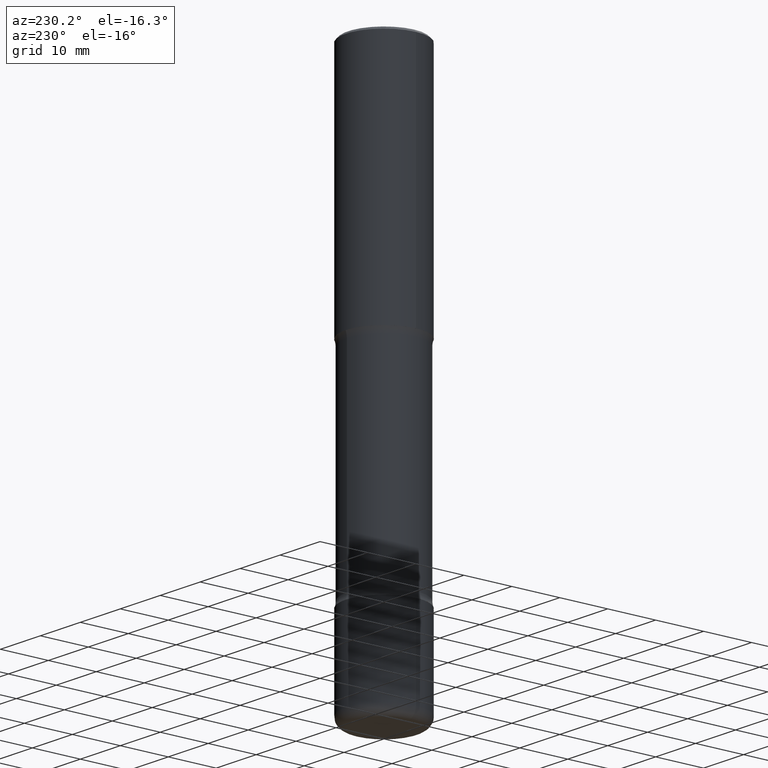
[diagram: clean part render]
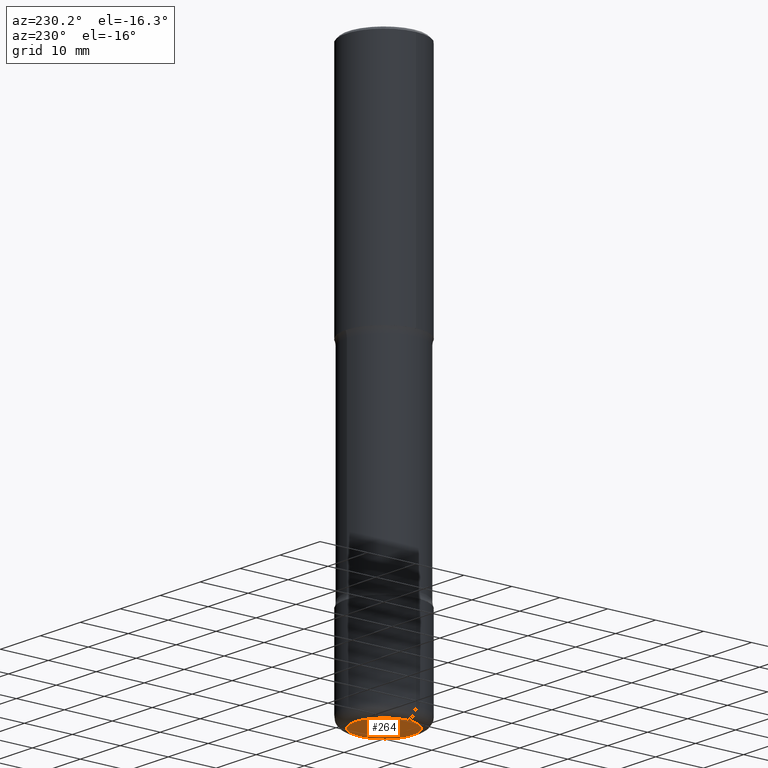
[diagram: same view with one face highlighted and labeled with its STEP entity id]
A machine part, auxiliary view. The second image highlights one B-rep face of the part: STEP entity #264.
In plain terms, the highlighted planar face has unit normal (0, -0, -1).
Its self-contained STEP definition (entity closure, byte-faithful):
#35 = FACE_OUTER_BOUND ( 'NONE', #530, .T. ) ;
#38 = DIRECTION ( 'NONE',  ( -2.445468806185136597E-29, 3.491481338843145583E-15, 1.000000000000000000 ) ) ;
#42 = PLANE ( 'NONE',  #216 ) ;
#78 = DIRECTION ( 'NONE',  ( -2.445468806185136597E-29, 3.491481338843145583E-15, 1.000000000000000000 ) ) ;
#149 = ORIENTED_EDGE ( 'NONE', *, *, #254, .F. ) ;
#158 = CARTESIAN_POINT ( 'NONE',  ( 1.107210456688382522E-28, -1.580803090974622705E-14, -4.527600000000000513 ) ) ;
#187 = VERTEX_POINT ( 'NONE', #330 ) ;
#203 = DIRECTION ( 'NONE',  ( 1.000000000000000000, -6.982962677686268288E-15, 0.000000000000000000 ) ) ;
#205 = DIRECTION ( 'NONE',  ( -1.000000000000000000, 6.982962677686265922E-15, -4.876176775795935793E-29 ) ) ;
#216 = AXIS2_PLACEMENT_3D ( 'NONE', #244, #386, #205 ) ;
#238 = CIRCLE ( 'NONE', #313, 0.2362500000000003209 ) ;
#242 = CARTESIAN_POINT ( 'NONE',  ( 1.107210456688382522E-28, -1.580803090974622705E-14, -4.527600000000000513 ) ) ;
#244 = CARTESIAN_POINT ( 'NONE',  ( 3.760335250554058261E-29, -2.627890073079537075E-14, -4.527600000000000513 ) ) ;
#249 = CIRCLE ( 'NONE', #496, 0.2362500000000003209 ) ;
#254 = EDGE_CURVE ( 'NONE', #507, #187, #249, .T. ) ;
#264 = ADVANCED_FACE ( 'NONE', ( #35 ), #42, .T. ) ;
#313 = AXIS2_PLACEMENT_3D ( 'NONE', #158, #78, #203 ) ;
#316 = EDGE_CURVE ( 'NONE', #187, #507, #238, .T. ) ;
#330 = CARTESIAN_POINT ( 'NONE',  ( -0.2362500000000003209, -1.371238533930791063E-14, -4.527600000000000513 ) ) ;
#386 = DIRECTION ( 'NONE',  ( 2.438088387897960049E-29, -3.491481338843145188E-15, -1.000000000000000000 ) ) ;
#425 = DIRECTION ( 'NONE',  ( 1.000000000000000000, -6.982962677686268288E-15, 0.000000000000000000 ) ) ;
#453 = ORIENTED_EDGE ( 'NONE', *, *, #316, .F. ) ;
#487 = CARTESIAN_POINT ( 'NONE',  ( 0.2362500000000003209, -1.745775584234961182E-14, -4.527600000000000513 ) ) ;
#496 = AXIS2_PLACEMENT_3D ( 'NONE', #242, #38, #425 ) ;
#507 = VERTEX_POINT ( 'NONE', #487 ) ;
#530 = EDGE_LOOP ( 'NONE', ( #149, #453 ) ) ;